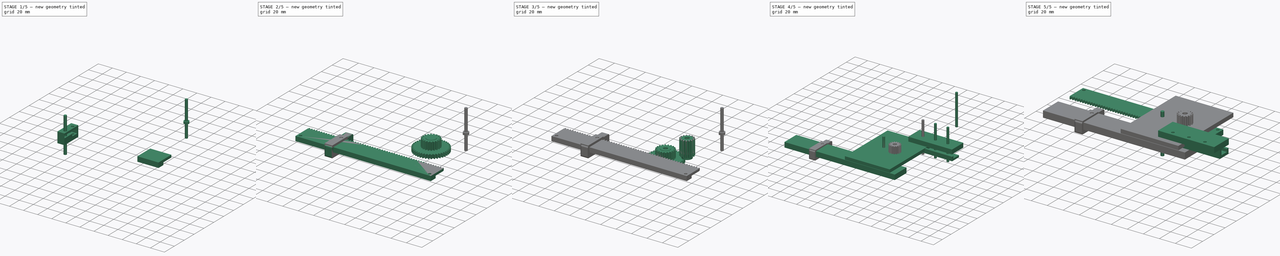
[diagram: build sequence overview — one tinted view per stage of 5, left to right]
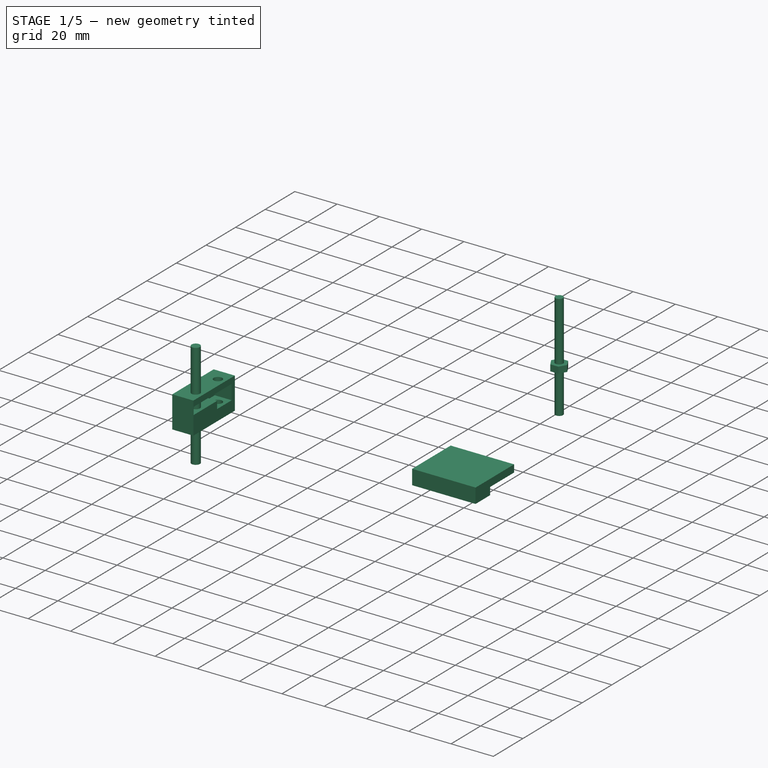
[diagram: stage 1 of 5 — iso view after this stage's code; geometry added in this stage tinted green]
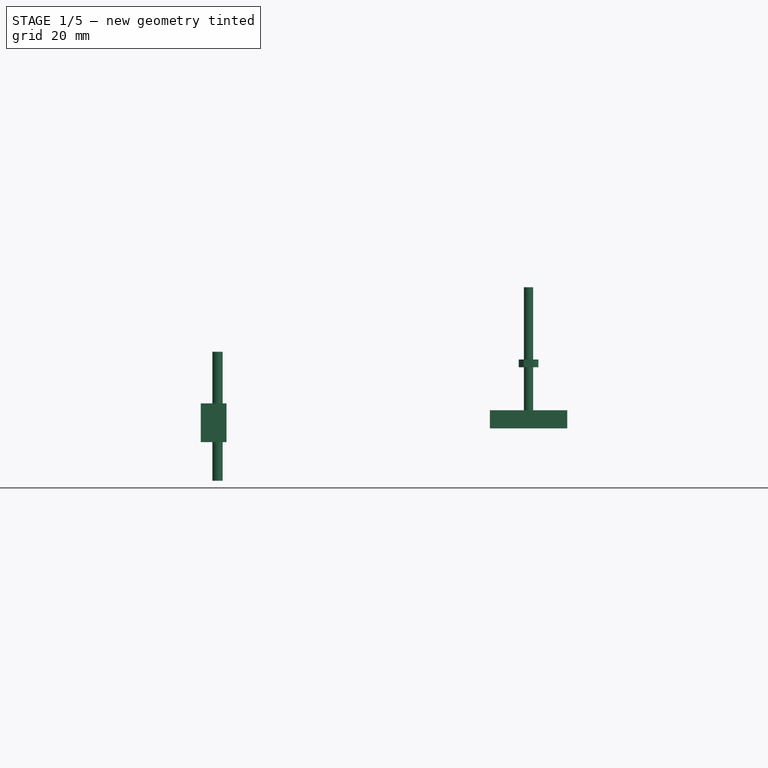
[diagram: stage 1 of 5 — front view after this stage's code; geometry added in this stage tinted green]
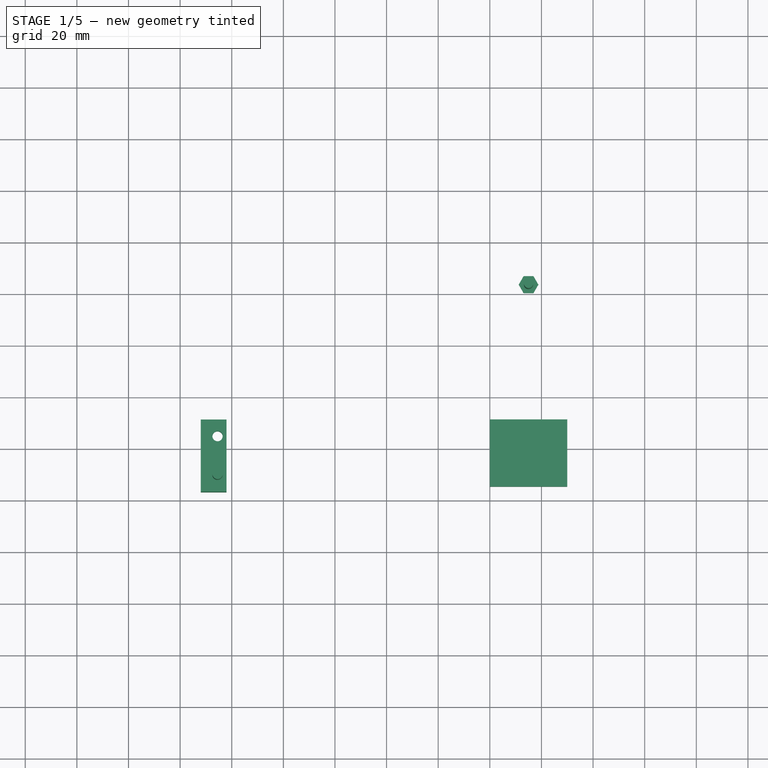
[diagram: stage 1 of 5 — top view after this stage's code; geometry added in this stage tinted green]
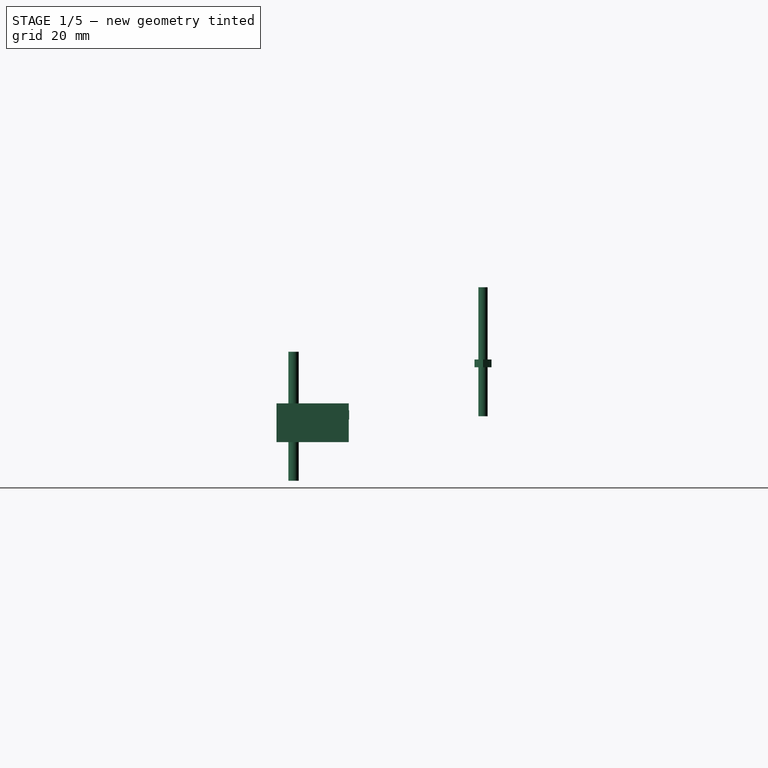
[diagram: stage 1 of 5 — right view after this stage's code; geometry added in this stage tinted green]
FCSTD DOCUMENT  (FreeCAD 0.18.4R)
Label: gears_v2
License: All rights reserved
LicenseURL: http://en.wikipedia.org/wiki/All_rights_reserved
objects: Part::Cylinder×10, Part::FeaturePython×10, Part::Box×8, Path::FeaturePython×8, Part::MultiFuse×7, Part::Cut×7, App::Part×7, Part::Feature×3, Sketcher::SketchObject×3, PartDesign::Pad×3, PartDesign::Body×3, App::FeaturePython×2, App::DocumentObjectGroup×2, Path::FeatureCompoundPython×2, Part::Mirroring×2, Spreadsheet::Sheet×1, Part::Fillet×1, Part::RegularPolygon×1, Part::Extrusion×1
note: 63 computed .brp shape members not serialized (recipe doc carries the construction recipe); baked Part::Feature solids carry a one-line shape summary decoded from their .brp

FEATURE [Part::Cylinder] Cylinder005  label="Cylinder"
  Angle = 360
  AttacherType = Attacher::AttachEngine3D
  Height = 50
  Placement = pos=(15,43,-12) rot=(0,0,1;0rad)
  Radius = 1.8
FEATURE [Part::Cylinder] Cylinder009
  Angle = 360
  AttacherType = Attacher::AttachEngine3D
  Height = 50
  Placement = pos=(-105.5,-30.4,-37) rot=(0,0,1;0rad)
  Radius = 2
FEATURE [Sketcher::SketchObject] Sketch001
  MapMode = 5
  Placement = pos=(0,0,0) rot=(0.57735,0.57735,0.57735;2.0944rad)
  Support = -> [YZ_Plane007]
  sketch-geometry (6):
    g0: LineSegment StartX=-34.9053 StartY=-9.68113 StartZ=0 EndX=-8.8898 EndY=-9.68113 EndZ=0
    g1: LineSegment StartX=-34.9053 StartY=-16.6811 StartZ=0 EndX=-34.9053 EndY=-9.68113 EndZ=0
    g2: LineSegment StartX=-34.9053 StartY=-16.6811 StartZ=0 EndX=-25.1079 EndY=-16.6811 EndZ=0
    g3: LineSegment StartX=-25.1079 StartY=-16.6811 StartZ=0 EndX=-25.1079 EndY=-13.1811 EndZ=0
    g4: LineSegment StartX=-25.1079 StartY=-13.1811 StartZ=0 EndX=-8.8898 EndY=-13.1811 EndZ=0
    g5: LineSegment StartX=-8.8898 StartY=-13.1811 StartZ=0 EndX=-8.8898 EndY=-9.68113 EndZ=0
  constraints (14):
    c: Coincident(g1,g0)
    c: Horizontal(g0)
    c: Vertical(g1)
    c: Coincident(g1,g2)
    c: Horizontal(g2)
    c: Coincident(g2,g3)
    c: Vertical(g3)
    c: Coincident(g3,g4)
    c: Horizontal(g4)
    c: Coincident(g4,g5)
    c: Coincident(g5,g0)
    c: Vertical(g5)
    c: DistanceY(g1,g1) = 7
    c: DistanceY(g5,g5) = 3.5
FEATURE [PartDesign::Pad] Pad001
  Length = 30
  Length2 = 100
  Placement = pos=(0,0,0) rot=(0.57735,0.57735,0.57735;2.0944rad)
  Profile = -> Sketch001
  Type = 0
FEATURE [App::Part] Part005  label="pusher shoe part"
  Group = -> [Box006,Cylinder008,Cut009,Cylinder009,Body001,Fusion001005,Fillet]
  Origin = -> Origin006
FEATURE [Part::Cylinder] Cylinder011
  Angle = 360
  AttacherType = Attacher::AttachEngine3D
  Height = 50
  Placement = pos=(-105.5,-15.4,-37) rot=(0,0,1;0rad)
  Radius = 2
FEATURE [Part::Box] Box007  label="Cube007"
  AttacherType = Attacher::AttachEngine3D
  Height = 15
  Length = 10
  Placement = pos=(-112,-37,-22) rot=(0,0,1;0rad)
  Width = 28
FEATURE [Sketcher::SketchObject] Sketch002
  MapMode = 5
  Placement = pos=(0,0,0) rot=(0.57735,0.57735,0.57735;2.0944rad)
  Support = -> [YZ_Plane009]
  sketch-geometry (6):
    g0: LineSegment StartX=-36.8054 StartY=-9.73482 StartZ=0 EndX=-11.1221 EndY=-9.73482 EndZ=0
    g1: LineSegment StartX=-36.8054 StartY=-13.2348 StartZ=0 EndX=-36.8054 EndY=-9.73482 EndZ=0
    g2: LineSegment StartX=-36.8054 StartY=-13.2348 StartZ=0 EndX=-20.9194 EndY=-13.2348 EndZ=0
    g3: LineSegment StartX=-20.9194 StartY=-13.2348 StartZ=0 EndX=-20.9194 EndY=-16.7348 EndZ=0
    g4: LineSegment StartX=-20.9194 StartY=-16.7348 StartZ=0 EndX=-11.1221 EndY=-16.7348 EndZ=0
    g5: LineSegment StartX=-11.1221 StartY=-16.7348 StartZ=0 EndX=-11.1221 EndY=-9.73482 EndZ=0
  constraints (14):
    c: Coincident(g1,g0)
    c: Horizontal(g0)
    c: Vertical(g1)
    c: Coincident(g1,g2)
    c: Horizontal(g2)
    c: Coincident(g2,g3)
    c: Vertical(g3)
    c: Coincident(g3,g4)
    c: Horizontal(g4)
    c: Coincident(g4,g5)
    c: Coincident(g5,g0)
    c: Vertical(g5)
    c: DistanceY(g5,g5) = 7
    c: DistanceY(g1,g1) = 3.5
FEATURE [PartDesign::Pad] Pad002
  Length = 30
  Length2 = 100
  Placement = pos=(0,0,0) rot=(0.57735,0.57735,0.57735;2.0944rad)
  Profile = -> Sketch002
  Type = 0
FEATURE [PartDesign::Body] Body002
  Group = -> [Sketch002,Pad002]
  Origin = -> Origin009
  Placement = pos=(-110,0,0) rot=(0,0,1;0rad)
  Tip = -> Pad002
FEATURE [Part::MultiFuse] Fusion001006
  Shapes = -> [Body002,Cylinder011]
FEATURE [Part::Cut] Cut010
  Base = -> Box007
  Tool = -> Fusion001006
FEATURE [App::Part] Part006  label="pusher other shoe part"
  Group = -> [Box007,Cut010,Cylinder011,Body002,Fusion001006]
  Origin = -> Origin008
  Placement = pos=(0,46,0) rot=(0,0,1;0rad)
FEATURE [Part::RegularPolygon] RegularPolygon  label="Regular polygon"
  AttacherType = Attacher::AttachEngine3D
  Circumradius = 3.8
  Polygon = 6
FEATURE [Part::Extrusion] Extrude001  label="Extrude"
  Base = -> RegularPolygon
  Dir = (0,0,1)
  DirMode = 2
  FaceMakerClass = Part::FaceMakerBullseye
  LengthFwd = 3
  LengthRev = 0
  Placement = pos=(15,43,7) rot=(0,0,1;0rad)
  Solid = true
  Symmetric = false
FEATURE [Part::MultiFuse] Fusion001007
  Shapes = -> [Cylinder005,Extrude001]
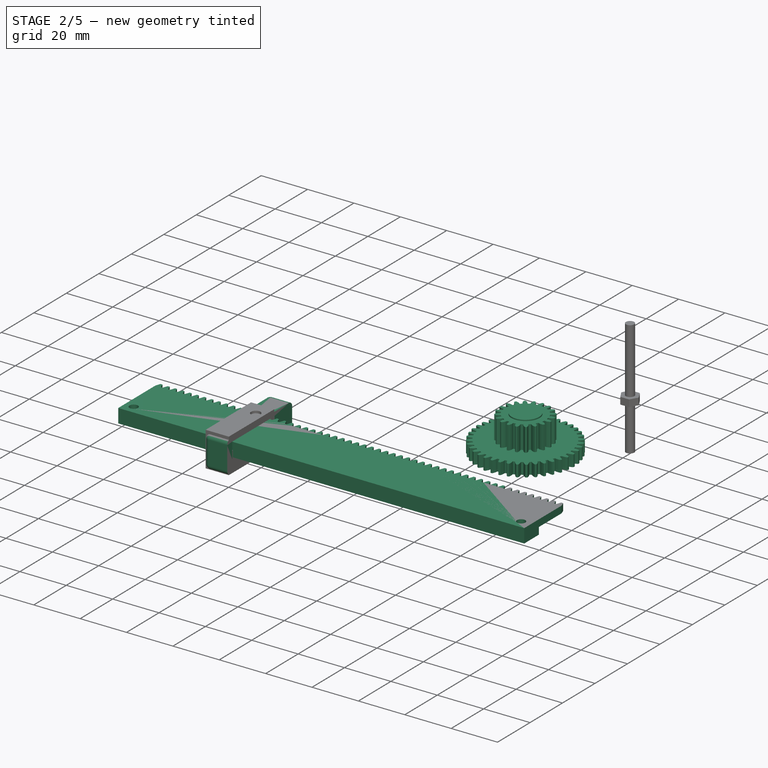
[diagram: stage 2 of 5 — iso view after this stage's code; geometry added in this stage tinted green]
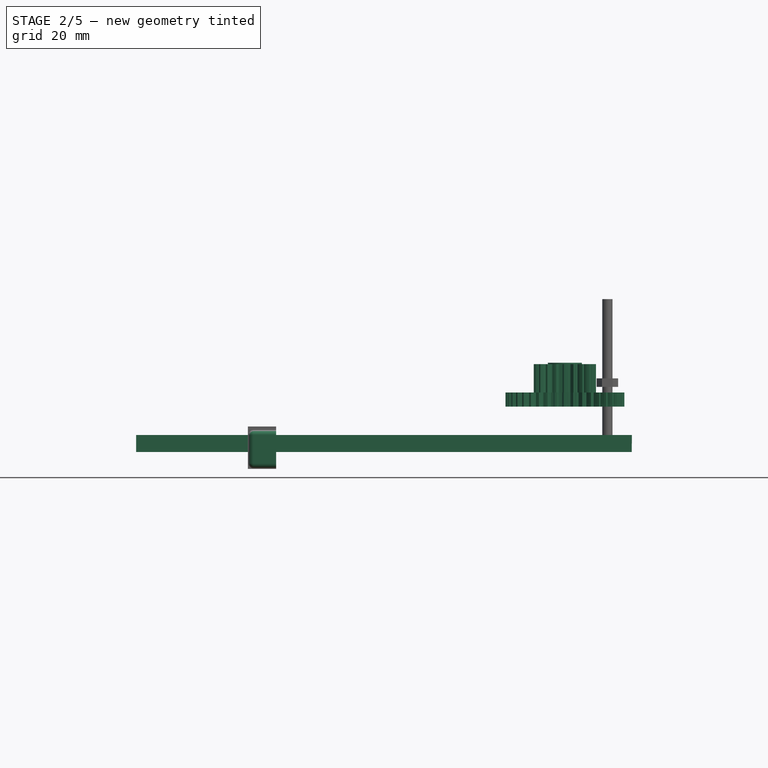
[diagram: stage 2 of 5 — front view after this stage's code; geometry added in this stage tinted green]
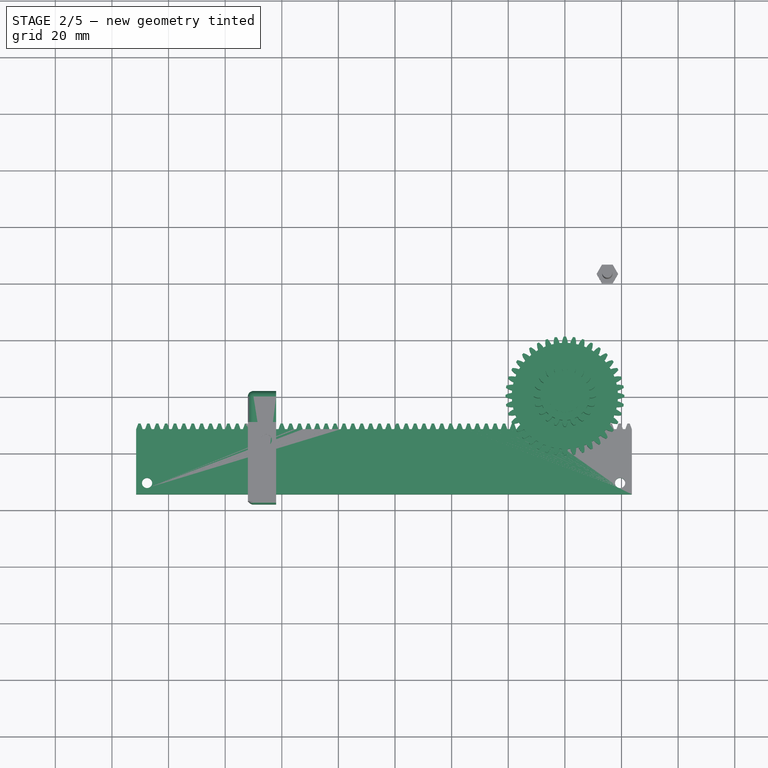
[diagram: stage 2 of 5 — top view after this stage's code; geometry added in this stage tinted green]
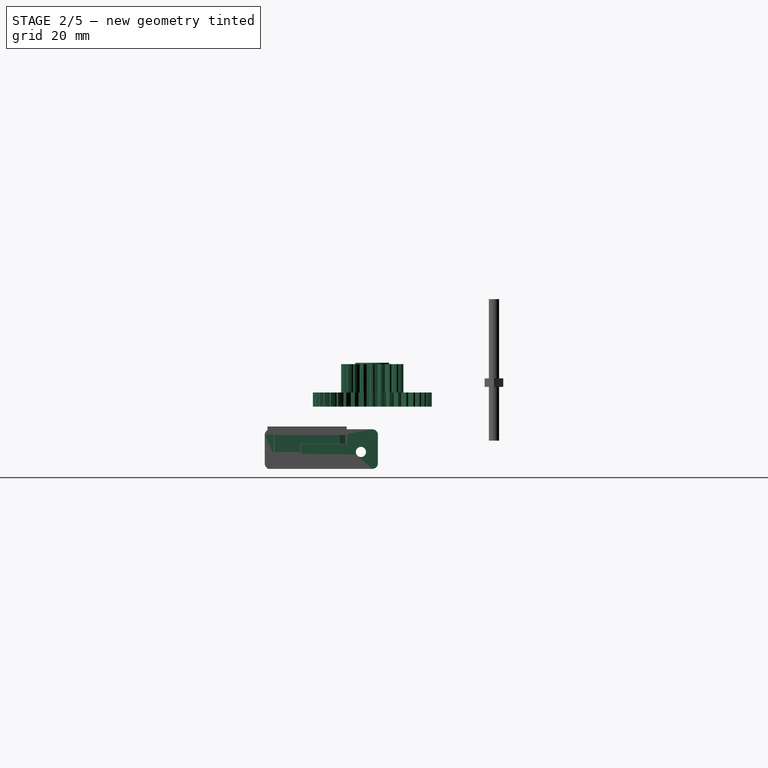
[diagram: stage 2 of 5 — right view after this stage's code; geometry added in this stage tinted green]
FEATURE [Part::FeaturePython] InvoluteGear001  label="Involute smaller Gear"  # WARN: FeaturePython — macro-defined, semantics opaque (R4)
  Placement = pos=(0,0,5) rot=(0,0,1;0rad)
  backlash = 0
  beta = 0
  clearance = 0.25
  double_helix = false
  dw = 20
  head = 0
  height = 10
  module = 1
  numpoints = 6
  pressure_angle = 20
  reversed_backlash = false
  shift = 0
  simple = false
  teeth = 20
  undercut = false
FEATURE [Part::FeaturePython] InvoluteGear002  label="Involute bigger Gear"  # WARN: FeaturePython — macro-defined, semantics opaque (R4)
  backlash = 0
  beta = 0
  clearance = 0.25
  double_helix = false
  dw = 40
  head = 0
  height = 5
  module = 1
  numpoints = 6
  pressure_angle = 20
  reversed_backlash = false
  shift = 0
  simple = false
  teeth = 40
  undercut = false
FEATURE [Part::Cylinder] Cylinder002  label="Vtulka"
  Angle = 360
  AttacherType = Attacher::AttachEngine3D
  Height = 15
  Placement = pos=(0,0,0.5) rot=(0,0,1;0rad)
  Radius = 6
FEATURE [Part::MultiFuse] Fusion001002
  Shapes = -> [InvoluteGear001,InvoluteGear002,Cylinder002]
FEATURE [App::Part] Part001  label="gear line part"
  Group = -> [Cylinder003,Cut006,InvoluteRack,Box,Fusion,Part__Mirroring,Array001]
  Origin = -> Origin002
  Placement = pos=(42,0,0) rot=(0,0,1;0rad)
FEATURE [Part::Feature] Cut006_solid001  label="gears line001 (Solid)"
  shape: bbox 175.1 x 25 x 6 mm, 236 faces (baked)
FEATURE [Part::FeaturePython] Clone001  label="Model-gears line001 (Solid)001"  # Draft clone (typed FeaturePython)
  AttacherType = Attacher::AttachEngine3D
  Fuse = false
  Objects = -> [Cut006_solid001]
  PathResource = Model
  Scale = (1,1,1)
FEATURE [App::Part] Part003  label="stepper gear part"
  Group = -> [InvoluteGear,Fusion001001,Cylinder006,Fusion001003,Cut007,Cylinder007,Box005,Cut008]
  Origin = -> Origin004
  Placement = pos=(0,0,-16) rot=(0,0,1;0rad)
FEATURE [App::Part] Part004  label="gear pair part"
  Group = -> [Fusion001002,InvoluteGear002,InvoluteGear001,Cylinder001,Cylinder002,Cut005]
  Origin = -> Origin005
FEATURE [Path::FeaturePython] Engrave003  # Path/CAM operation (typed FeaturePython)
  Active = true
  Base = -> [Clone001]
  ClearanceHeight = -9
  FinalDepth = 0
  OpFinalDepth = -10.2
  OpStartDepth = -10
  OpStockZMax = -9
  OpStockZMin = -17
  OpToolDiameter = 0.2
  SafeHeight = -9
  StartDepth = 0
  StartVertex = 0
  StepDown = 0.2
  ToolController = -> T3__laser001
  expr: ClearanceHeight = OpStockZMax + SetupSheet001.ClearanceHeightOffset
  expr: SafeHeight = OpStockZMax + SetupSheet001.SafeHeightOffset
  expr: StepDown = OpToolDiameter
FEATURE [Path::FeatureCompoundPython] Operations001  # Path/CAM operation (typed FeaturePython)
  Group = -> [Engrave002,Contour,Engrave003]
  UsePlacements = false
FEATURE [Path::FeaturePython] Job001  label="gear line job"  # Path/CAM operation (typed FeaturePython)
  GeometryTolerance = 0.01
  Model = -> Model001
  Operations = -> Operations001
  PostProcessor = 1
  PostProcessorOutputFile = <userpath>/work/roborep/freecad/stepper_gears/gear_line_wide.gcode
  SetupSheet = -> SetupSheet001
  Stock = -> Stock003
  ToolController = -> [T3__laser001]
FEATURE [Part::Box] Box006  label="Cube006"
  AttacherType = Attacher::AttachEngine3D
  Height = 14
  Length = 10
  Placement = pos=(-112,-38,-22) rot=(0,0,1;0rad)
  Width = 40
FEATURE [Part::Cylinder] Cylinder008
  Angle = 360
  AttacherType = Attacher::AttachEngine3D
  Height = 50
  Placement = pos=(-143,-4,-16) rot=(0,1,0;1.5708rad)
  Radius = 1.8
FEATURE [PartDesign::Body] Body001
  Group = -> [Sketch001,Pad001]
  Origin = -> Origin007
  Placement = pos=(-110,0,0) rot=(0,0,1;0rad)
  Tip = -> Pad001
FEATURE [Part::MultiFuse] Fusion001005
  Shapes = -> [Cylinder008,Cylinder009,Body001]
FEATURE [Part::Cut] Cut009
  Base = -> Box006
  Tool = -> Fusion001005
FEATURE [Part::Fillet] Fillet
  Base = -> Cut009
  Edges = 8 edges r=2: [Edge1,Edge2,Edge3,Edge4,Edge6,Edge8,Edge9,Edge12]
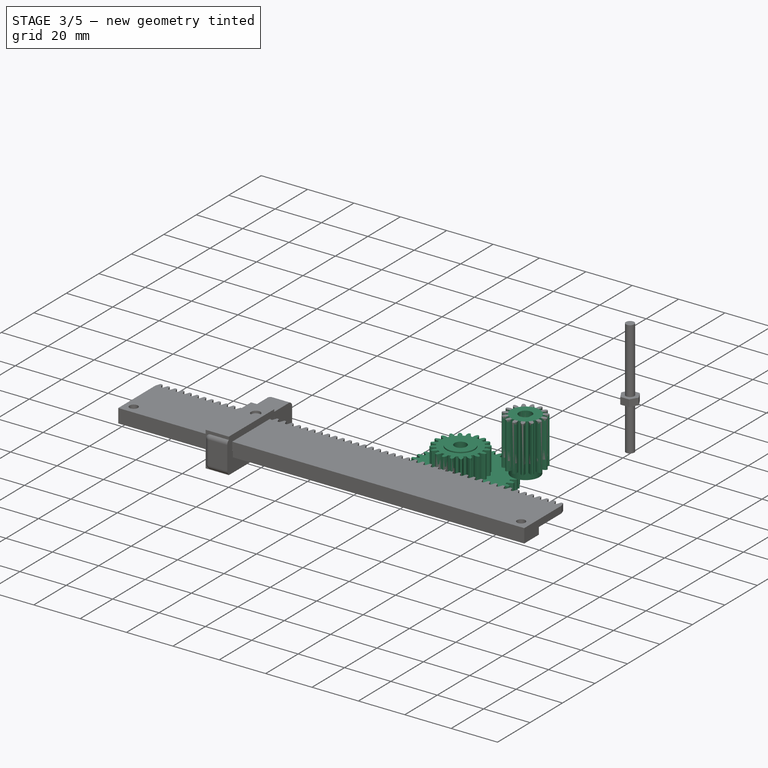
[diagram: stage 3 of 5 — iso view after this stage's code; geometry added in this stage tinted green]
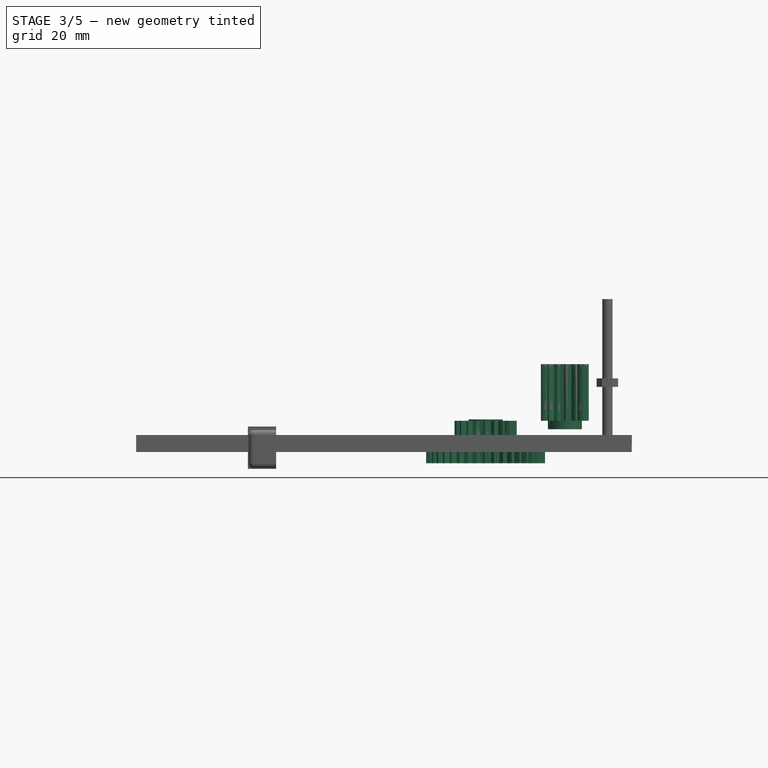
[diagram: stage 3 of 5 — front view after this stage's code; geometry added in this stage tinted green]
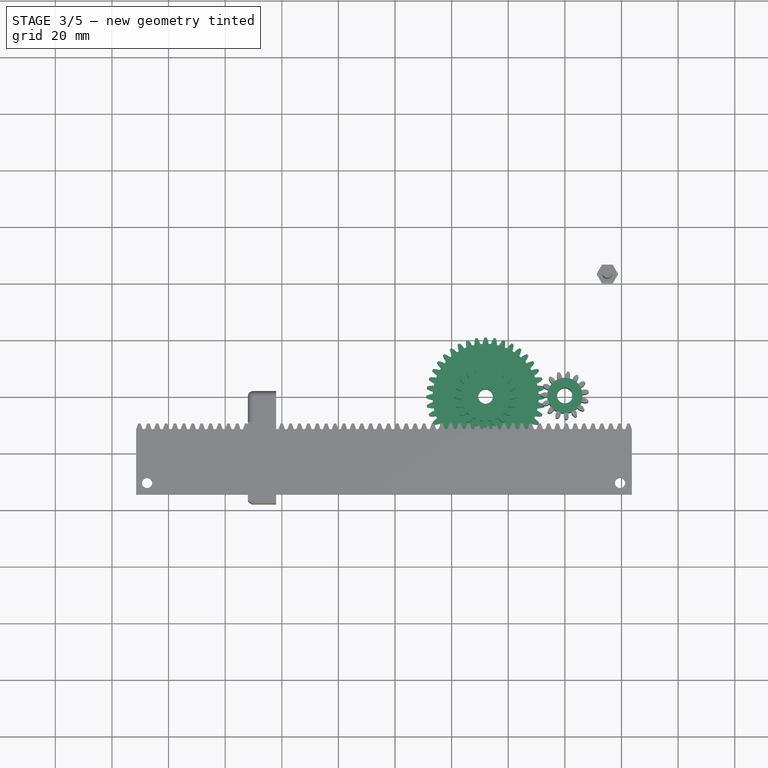
[diagram: stage 3 of 5 — top view after this stage's code; geometry added in this stage tinted green]
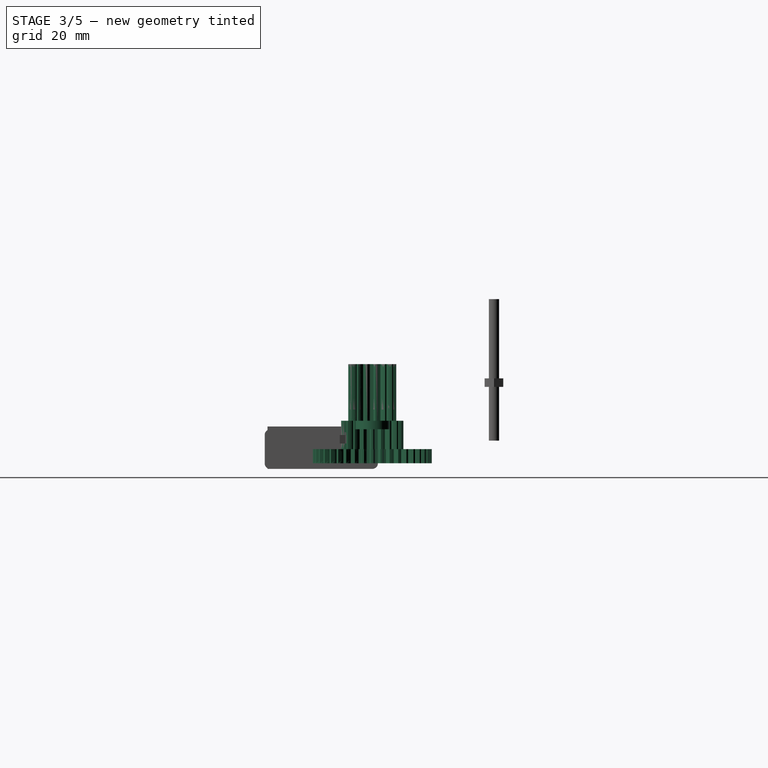
[diagram: stage 3 of 5 — right view after this stage's code; geometry added in this stage tinted green]
FEATURE [Part::Cylinder] Cylinder001
  Angle = 360
  AttacherType = Attacher::AttachEngine3D
  Height = 30
  Placement = pos=(0,0,-10.5) rot=(0,0,1;0rad)
  Radius = 2.6
FEATURE [Part::Cut] Cut005  label="gears pair"
  Base = -> Fusion001002
  Placement = pos=(-28,0,-20) rot=(0,-1,0;0rad)
  Tool = -> Cylinder001
FEATURE [Part::Cylinder] Cylinder006
  Angle = 360
  AttacherType = Attacher::AttachEngine3D
  Height = 13
  Placement = pos=(0,0,-8) rot=(0,0,1;0rad)
  Radius = 6
FEATURE [Part::FeaturePython] InvoluteGear  # WARN: FeaturePython — macro-defined, semantics opaque (R4)
  Placement = pos=(0,0,-5) rot=(0,0,1;0rad)
  backlash = 0
  beta = 0
  clearance = 0.25
  double_helix = false
  dw = 15
  head = 0
  height = 20
  module = 1
  numpoints = 6
  pressure_angle = 20
  reversed_backlash = false
  shift = 0
  simple = false
  teeth = 15
  undercut = false
FEATURE [Part::MultiFuse] Fusion001003  label="shaft gear block"
  Shapes = -> [InvoluteGear,Cylinder006]
FEATURE [Part::Feature] Fusion001001  label="Motor-with-connector-final"
  Placement = pos=(0,0,-53) rot=(0,0,1;0rad)
  shape: bbox 48 x 42.3 x 60.1 mm, 110 faces (baked)
FEATURE [Part::Cylinder] Cylinder007
  Angle = 360
  AttacherType = Attacher::AttachEngine3D
  Height = 50
  Radius = 2.8
FEATURE [Part::Box] Box005  label="Cube005"
  AttacherType = Attacher::AttachEngine3D
  Height = 50
  Length = 10
  Placement = pos=(-12.5,-5,0) rot=(0,0,1;0rad)
  Width = 10
FEATURE [Part::Cut] Cut008  label="motor shaft"
  Base = -> Cylinder007
  Placement = pos=(0,0,-10) rot=(0,0,1;0rad)
  Tool = -> Box005
FEATURE [Part::Cut] Cut007  label="stepper_gear_cut"
  Base = -> Fusion001003
  Placement = pos=(0,0,0) rot=(0,0,1;3.10669rad)
  Tool = -> Cut008
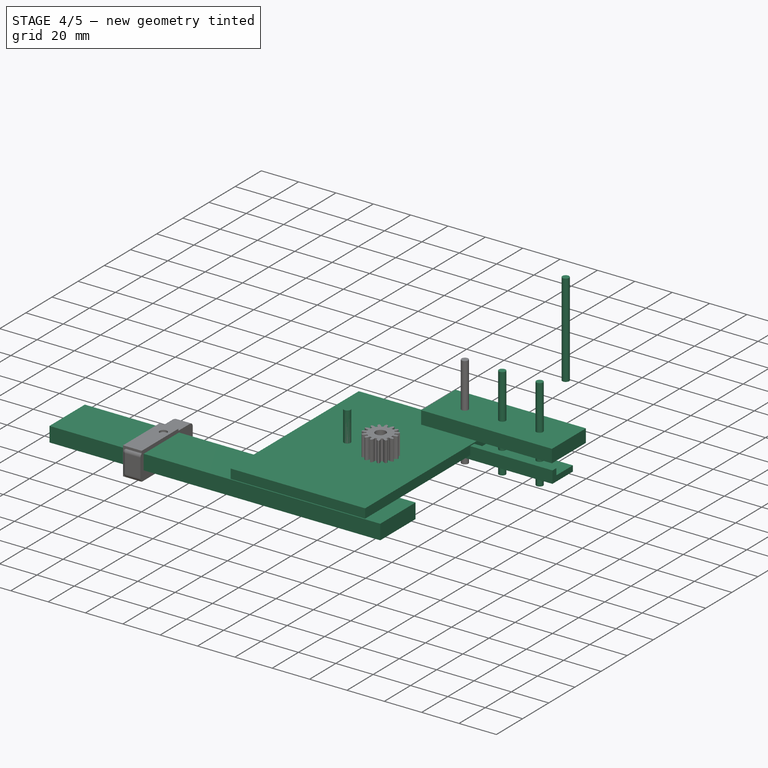
[diagram: stage 4 of 5 — iso view after this stage's code; geometry added in this stage tinted green]
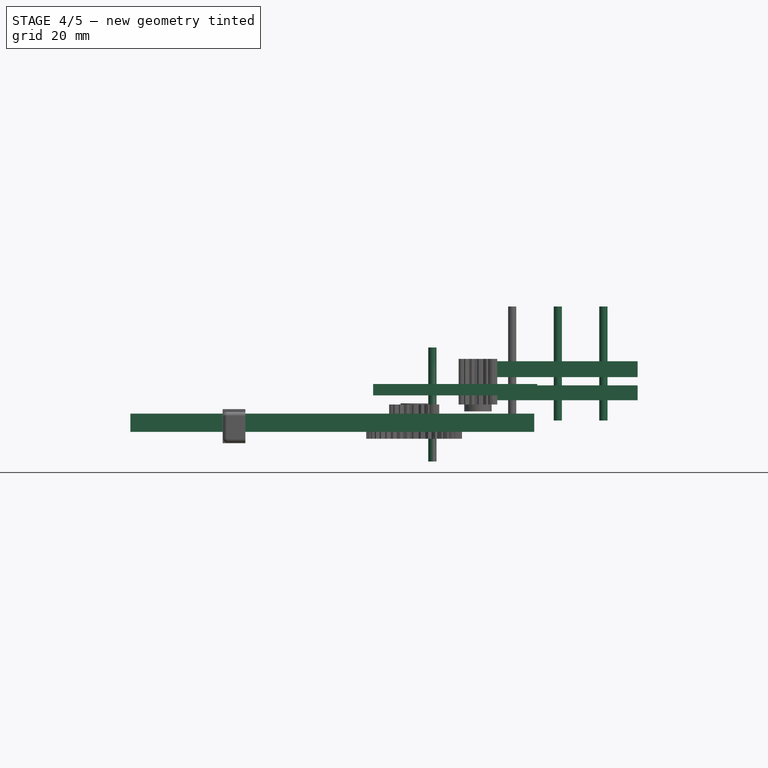
[diagram: stage 4 of 5 — front view after this stage's code; geometry added in this stage tinted green]
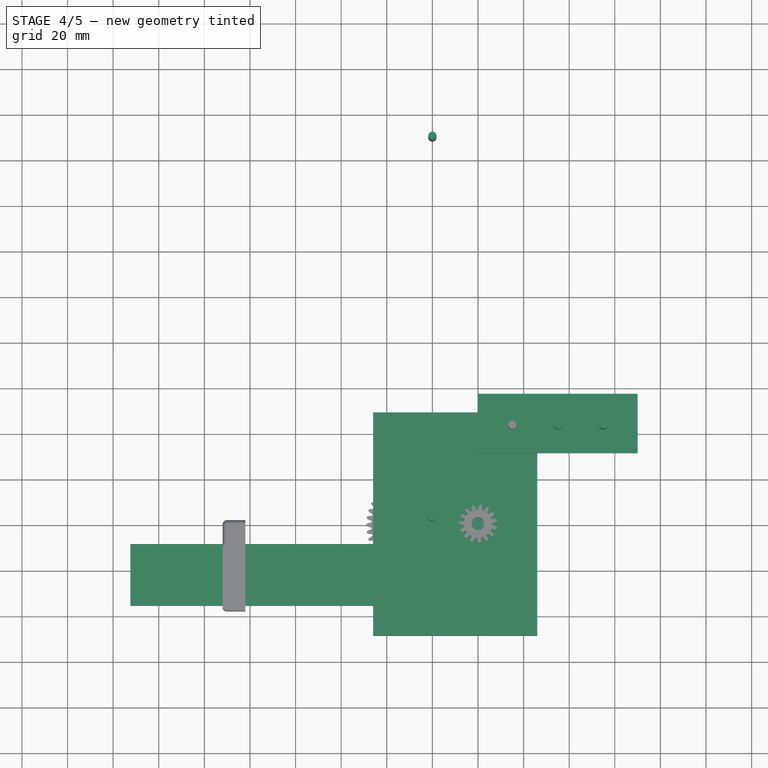
[diagram: stage 4 of 5 — top view after this stage's code; geometry added in this stage tinted green]
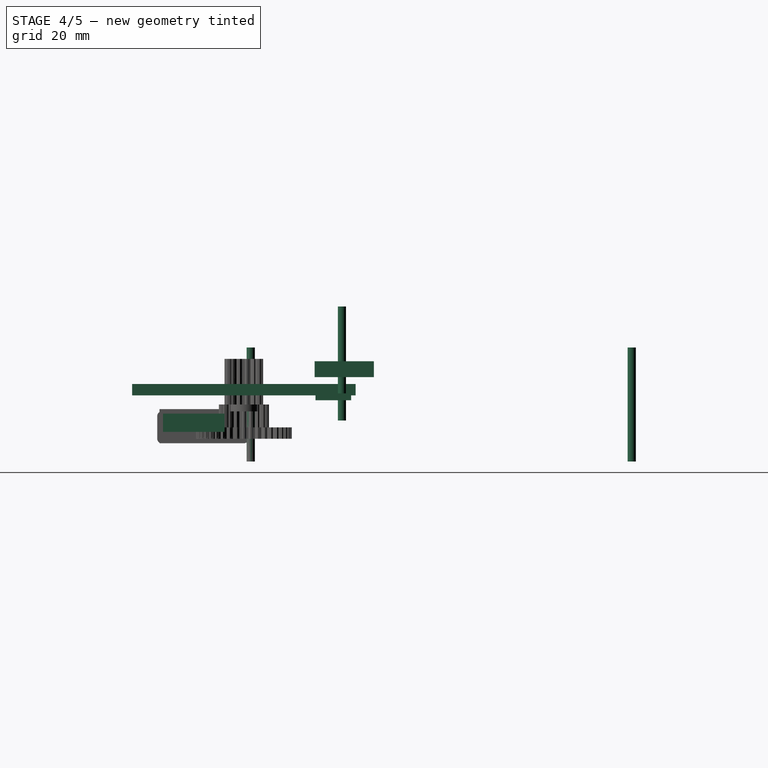
[diagram: stage 4 of 5 — right view after this stage's code; geometry added in this stage tinted green]
FEATURE [Part::Cylinder] Cylinder003
  Angle = 360
  AttacherType = Attacher::AttachEngine3D
  Height = 50
  Placement = pos=(-20,3,-30) rot=(0,0,1;0rad)
  Radius = 1.8
FEATURE [Spreadsheet::Sheet] Spreadsheet  label="p"
  cells = A1=teeth_line_length; B1(teeth_line_length)=175.08; A2=motor_plate_length; B2(motor_plate_length)=70; A3=motor_plate_width; B3(motor_plate_width)=96
FEATURE [Part::Box] Box002  label="Cube002"
  AttacherType = Attacher::AttachEngine3D
  Height = 7
  Length = 70
  Placement = pos=(0,31,7) rot=(0,0,1;0rad)
  Width = 26
  expr: Length = p.motor_plate_length
FEATURE [Part::Box] Box003  label="Cube003"
  AttacherType = Attacher::AttachEngine3D
  Height = 3
  Length = 70
  Placement = pos=(0,31.4,-3.1) rot=(0,0,1;0rad)
  Width = 15.6
  expr: Length = p.motor_plate_length
FEATURE [Part::Box] Box004  label="Cube004"
  AttacherType = Attacher::AttachEngine3D
  Height = 6
  Length = 70
  Placement = pos=(0,31.4,-2.6) rot=(0,0,1;0rad)
  Width = 3
  expr: Length = p.motor_plate_length
FEATURE [PartDesign::Pad] Pad
  Length = 3
  Length2 = 100
  Profile = -> Sketch
  Type = 0
FEATURE [PartDesign::Body] Body
  Group = -> [Sketch,Pad]
  Origin = -> Origin001
  Tip = -> Pad
FEATURE [App::Part] Part  label="motor plate"
  Group = -> [Body]
  Origin = -> Origin
FEATURE [App::FeaturePython] SetupSheet  # Path/CAM operation (typed FeaturePython)
  ClearanceHeightExpression = OpStockZMax+SetupSheet.ClearanceHeightOffset
  ClearanceHeightOffset = 0
  FinalDepthExpression = OpFinalDepth
  HorizRapid = 100
  SafeHeightExpression = OpStockZMax+SetupSheet.SafeHeightOffset
  SafeHeightOffset = 0
  StartDepthExpression = OpStartDepth
  StepDownExpression = OpToolDiameter
  VertRapid = 100
FEATURE [Part::FeaturePython] Clone  label="Model-motor plate"  # Draft clone (typed FeaturePython)
  AttacherType = Attacher::AttachEngine3D
  Fuse = false
  Objects = -> [Part]
  PathResource = Model
  Scale = (1,1,1)
FEATURE [App::DocumentObjectGroup] Model
  Group = -> [Clone]
FEATURE [Part::FeaturePython] Stock  # WARN: FeaturePython — macro-defined, semantics opaque (R4)
  Base = -> Model
  ExtXneg = 1
  ExtXpos = 1
  ExtYneg = 1
  ExtYpos = 1
  ExtZneg = 1
  ExtZpos = 1
  Placement = pos=(-45,-48,0) rot=(0,0,1;0rad)
  StockType = FromBase
FEATURE [Path::FeaturePython] T3__laser  label="T3: laser"  # Path/CAM operation (typed FeaturePython)
  HorizFeed = 0.5
  HorizRapid = 100
  SpindleDir = 0
  SpindleSpeed = 1000
  ToolNumber = 3
  VertFeed = 0.5
  VertRapid = 100
  expr: HorizRapid = SetupSheet.HorizRapid
  expr: VertRapid = SetupSheet.VertRapid
FEATURE [Path::FeaturePython] Engrave  # Path/CAM operation (typed FeaturePython)
  Active = true
  Base = -> [Clone]
  ClearanceHeight = 0
  FinalDepth = 0
  OpFinalDepth = 2.8
  OpStartDepth = 3
  OpStockZMax = 4
  OpStockZMin = -1
  OpToolDiameter = 0.2
  SafeHeight = 0
  StartDepth = 0
  StartVertex = 0
  StepDown = 0.2
  ToolController = -> T3__laser
  expr: StepDown = OpToolDiameter
FEATURE [Path::FeatureCompoundPython] Operations  # Path/CAM operation (typed FeaturePython)
  Group = -> [Engrave]
  UsePlacements = false
FEATURE [Path::FeaturePython] Job  label="motor plate job"  # Path/CAM operation (typed FeaturePython)
  GeometryTolerance = 0.01
  Model = -> Model
  Operations = -> Operations
  PostProcessor = 1
  PostProcessorOutputFile = <userpath>/work/roborep/freecad/stepper_gears/motor_plate.gcode
  SetupSheet = -> SetupSheet
  Stock = -> Stock
  ToolController = -> [T3__laser]
FEATURE [App::FeaturePython] SetupSheet001  # Path/CAM operation (typed FeaturePython)
  ClearanceHeightExpression = OpStockZMax+SetupSheet001.ClearanceHeightOffset
  ClearanceHeightOffset = 0
  FinalDepthExpression = OpFinalDepth
  HorizRapid = 100
  SafeHeightExpression = OpStockZMax+SetupSheet001.SafeHeightOffset
  SafeHeightOffset = 0
  StartDepthExpression = OpStartDepth
  StepDownExpression = OpToolDiameter
  VertRapid = 100
FEATURE [Path::FeaturePython] T3__laser001  label="T3: laser001"  # Path/CAM operation (typed FeaturePython)
  HorizFeed = 0.5
  HorizRapid = 100
  SpindleDir = 0
  SpindleSpeed = 1000
  ToolNumber = 3
  VertFeed = 0.5
  VertRapid = 100
  expr: HorizRapid = SetupSheet001.HorizRapid
  expr: VertRapid = SetupSheet001.VertRapid
FEATURE [Path::FeaturePython] Contour  # Path/CAM operation (typed FeaturePython)
  Active = false
  AreaParams:
    Tolerance = 1e-07
    FitArcs = True
    Simplify = False
    CleanDistance = 0.0
    Accuracy = 0.01
    Unit = 1.0
    MinArcPoints = 4
    MaxArcPoints = 100
    ClipperScale = 10000000.0
    Fill = 0
    Coplanar = 2
    Reorient = True
    Outline = False
    Explode = False
    OpenMode = 0
    Deflection = 0.01
    SubjectFill = 0
    ClipFill = 0
    Offset = 0.1
    ExtraPass = 0
    Stepover = 0.0
    LastStepover = 0.0
    JoinType = 0
    EndType = 0
    MiterLimit = 2.0
    RoundPrecision = 0.0
    PocketMode = 0
    ToolRadius = 1.0
    PocketExtraOffset = 0.0
    PocketStepover = 0.0
    PocketLastStepover = 0.0
    FromCenter = False
    Angle = 45.0
    AngleShift = 0.0
    Shift = 0.0
    Thicken = False
    SectionCount = -1
    Stepdown = 1.0
    SectionOffset = 0.0
    SectionTolerance = 1e-06
    SectionMode = 2
    Project = False
  ClearanceHeight = 0
  Direction = 1
  FinalDepth = -0.1
  JoinType = 0
  MiterLimit = 0.1
  OffsetExtra = 0
  OpFinalDepth = -17
  OpStartDepth = -9
  OpStockZMax = -9
  OpStockZMin = -17
  OpToolDiameter = 0.2
  PathParams = {'orientation': 0, 'feedrate': 0.5, 'feedrate_v': 0.5, 'verbose': True, 'resume_height': 0.0, 'retraction': 0.0, 'return_end': True, 'preamble': False}
  SafeHeight = 0
  Side = 0
  StartDepth = 0
  StartPoint = (0,0,0)
  StepDown = 0.2
  ToolController = -> T3__laser001
  UseComp = true
  UseStartPoint = false
  expr: StepDown = OpToolDiameter
FEATURE [Part::FeaturePython] Array001  # Draft array (typed FeaturePython)
  Angle = 360
  ArrayType = 0
  Axis = (0,0,1)
  Base = -> Cylinder003
  Center = (0,0,0)
  Fuse = false
  IntervalAxis = (0,0,0)
  IntervalX = (1,0,0)
  IntervalY = (0,167.08,0)
  IntervalZ = (0,0,1)
  NumberPolar = 1
  NumberX = 1
  NumberY = 2
  NumberZ = 1
  expr: IntervalY.y = p.teeth_line_length - 8
FEATURE [App::DocumentObjectGroup] Model001
  Group = -> [Clone001]
FEATURE [Path::FeaturePython] Engrave002  # Path/CAM operation (typed FeaturePython)
  Active = true
  Base = -> [Clone001]
  ClearanceHeight = 0
  FinalDepth = 0
  OpFinalDepth = -10.2
  OpStartDepth = -10
  OpStockZMax = -9
  OpStockZMin = -17
  OpToolDiameter = 0.2
  SafeHeight = 0
  StartDepth = 0
  StartVertex = 0
  StepDown = 0.2
  ToolController = -> T3__laser001
  expr: StepDown = OpToolDiameter
FEATURE [Part::FeaturePython] Stock003  # WARN: FeaturePython — macro-defined, semantics opaque (R4)
  Base = -> Model001
  ExtXneg = 1
  ExtXpos = 1
  ExtYneg = 1
  ExtYpos = 1
  ExtZneg = 1
  ExtZpos = 1
  Placement = pos=(-151.44,-34.5,-16) rot=(0,0,1;0rad)
  StockType = FromBase
FEATURE [Part::FeaturePython] Array  # Draft array (typed FeaturePython)
  Angle = 360
  ArrayType = 0
  Axis = (0,0,1)
  Base = -> Fusion001007
  Center = (0,0,0)
  Fuse = false
  IntervalAxis = (0,0,0)
  IntervalX = (20,0,0)
  IntervalY = (0,0,0)
  IntervalZ = (0,0,1)
  NumberPolar = 1
  NumberX = 3
  NumberY = 1
  NumberZ = 1
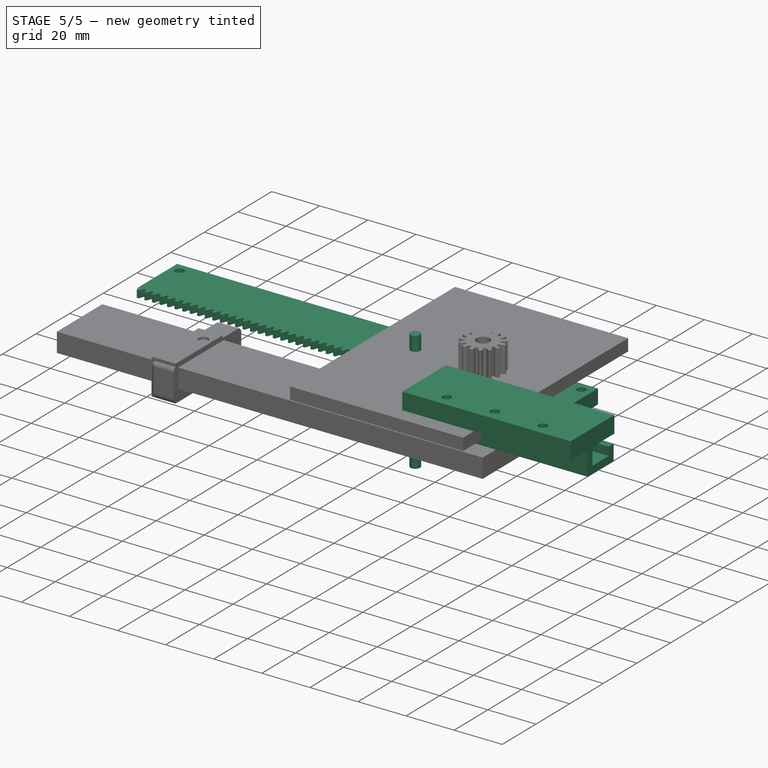
[diagram: stage 5 of 5 — iso view after this stage's code; geometry added in this stage tinted green]
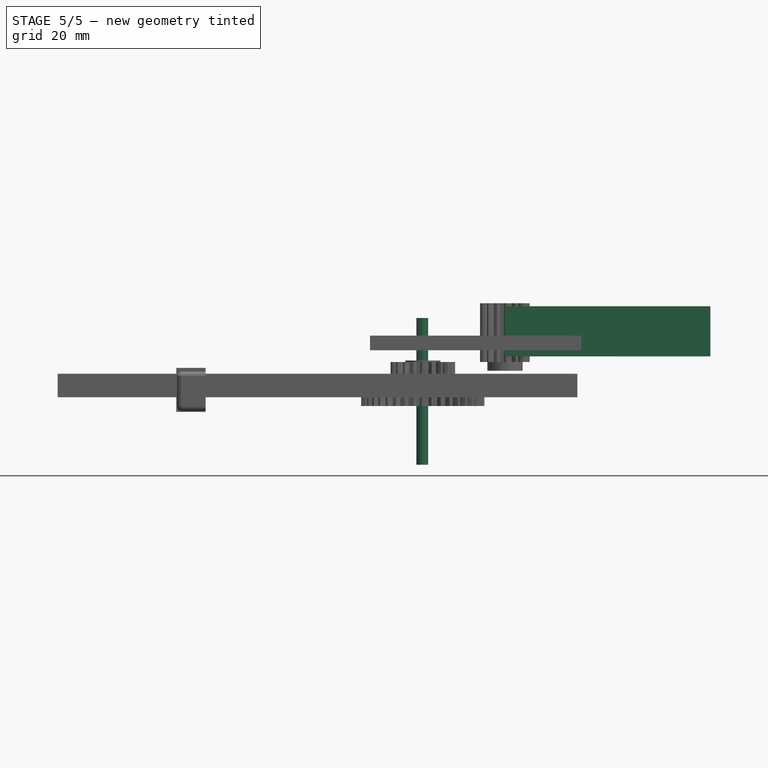
[diagram: stage 5 of 5 — front view after this stage's code; geometry added in this stage tinted green]
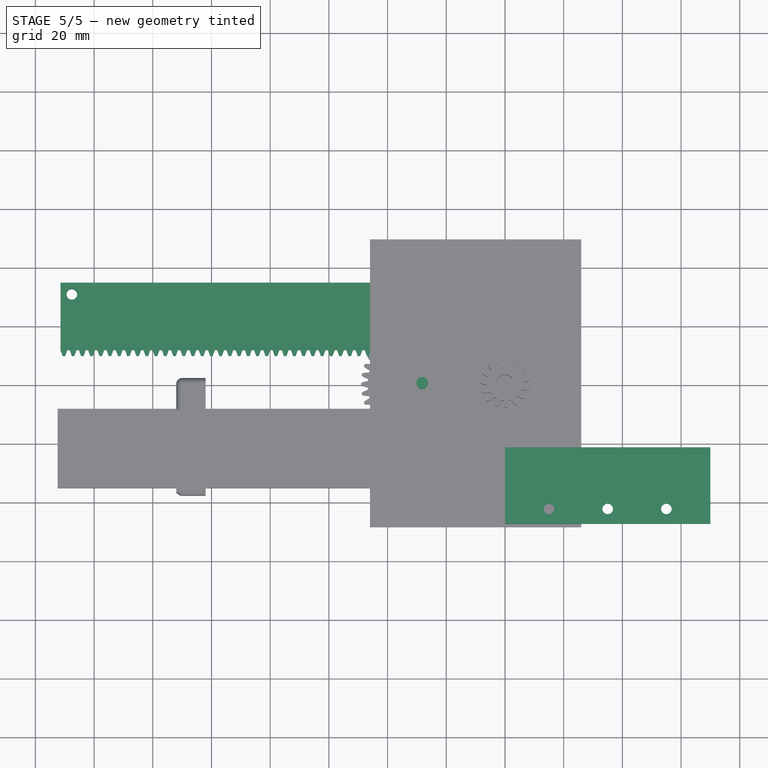
[diagram: stage 5 of 5 — top view after this stage's code; geometry added in this stage tinted green]
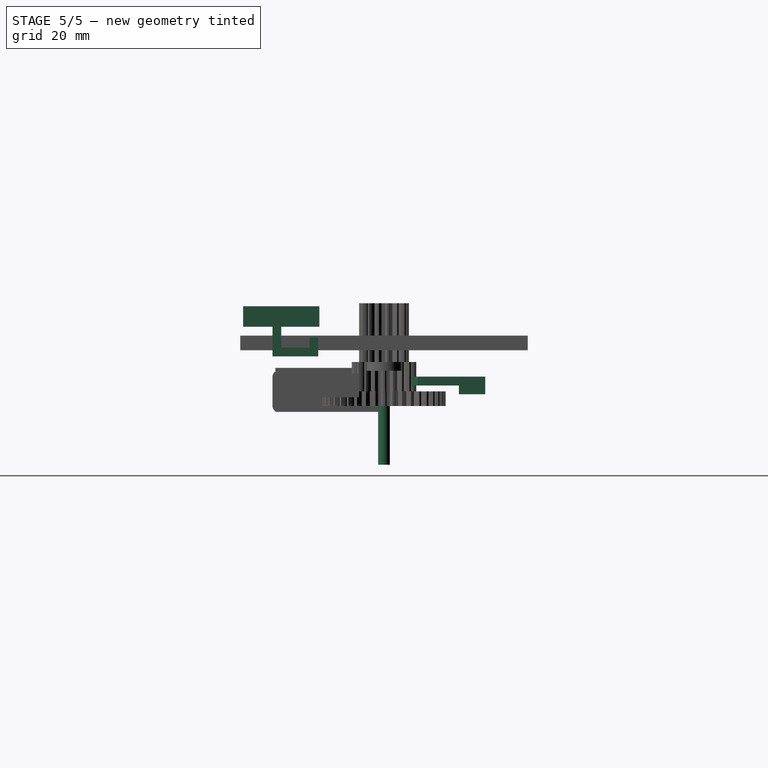
[diagram: stage 5 of 5 — right view after this stage's code; geometry added in this stage tinted green]
FEATURE [Part::Feature] Pocket003Body001  label="StepperBody"
  Placement = pos=(0,0,4) rot=(0,0,1;0rad)
  shape: bbox 46.6 x 42.3 x 53.35 mm, 70 faces (baked)
FEATURE [Sketcher::SketchObject] Sketch
  MapMode = 5
  Support = -> [XY_Plane001]
  expr: Constraints[14] = p.motor_plate_width
  expr: Constraints[13] = p.motor_plate_length
  sketch-geometry (39):
    g0: LineSegment StartX=-45 StartY=48 StartZ=0 EndX=25 EndY=48 EndZ=0
    g1: LineSegment StartX=25 StartY=48 StartZ=0 EndX=25 EndY=-48 EndZ=0
    g2: LineSegment StartX=25 StartY=-48 StartZ=0 EndX=-45 EndY=-48 EndZ=0
    g3: LineSegment StartX=-45 StartY=-48 StartZ=0 EndX=-45 EndY=48 EndZ=0
    g4: Circle CenterX=-15.5 CenterY=-15.5 CenterZ=0 NormalX=0 NormalY=0 NormalZ=1 AngleXU=0 Radius=1.8
    g5: Circle CenterX=15.5 CenterY=-15.5 CenterZ=0 NormalX=0 NormalY=0 NormalZ=1 AngleXU=0 Radius=1.8
    g6: Circle CenterX=15.5 CenterY=15.5 CenterZ=0 NormalX=0 NormalY=0 NormalZ=1 AngleXU=0 Radius=1.8
    g7: Circle CenterX=-15.5 CenterY=15.5 CenterZ=0 NormalX=0 NormalY=0 NormalZ=1 AngleXU=0 Radius=1.8
    g8: ArcOfCircle CenterX=-10 CenterY=45 CenterZ=0 NormalX=0 NormalY=0 NormalZ=1 AngleXU=0 Radius=1.9 StartAngle=-1.8e-15 EndAngle=3.14159
    g9: ArcOfCircle CenterX=-10 CenterY=41 CenterZ=0 NormalX=0 NormalY=0 NormalZ=1 AngleXU=0 Radius=1.9 StartAngle=3.14159 EndAngle=6.28319
    g10: LineSegment StartX=-11.9 StartY=45 StartZ=0 EndX=-11.9 EndY=41 EndZ=0
    g11: LineSegment StartX=-8.1 StartY=45 StartZ=0 EndX=-8.1 EndY=41 EndZ=0
    g12: ArcOfCircle CenterX=10.1 CenterY=45 CenterZ=0 NormalX=0 NormalY=0 NormalZ=1 AngleXU=0 Radius=1.9 StartAngle=-7.55e-14 EndAngle=3.14159
    g13: ArcOfCircle CenterX=10.1 CenterY=41 CenterZ=0 NormalX=0 NormalY=0 NormalZ=1 AngleXU=0 Radius=1.9 StartAngle=3.14159 EndAngle=6.28319
    g14: LineSegment StartX=8.2 StartY=45 StartZ=0 EndX=8.2 EndY=41 EndZ=0
    g15: LineSegment StartX=12 StartY=45 StartZ=0 EndX=12 EndY=41 EndZ=0
    g16: ArcOfCircle CenterX=-30.1 CenterY=45 CenterZ=0 NormalX=0 NormalY=0 NormalZ=1 AngleXU=0 Radius=1.9 StartAngle=-7.46e-14 EndAngle=3.14159
    g17: ArcOfCircle CenterX=-30.1 CenterY=41 CenterZ=0 NormalX=0 NormalY=0 NormalZ=1 AngleXU=0 Radius=1.9 StartAngle=3.14159 EndAngle=6.28319
    g18: LineSegment StartX=-32 StartY=45 StartZ=0 EndX=-32 EndY=41 EndZ=0
    g19: LineSegment StartX=-28.2 StartY=45 StartZ=0 EndX=-28.2 EndY=41 EndZ=0
    g20: ArcOfCircle CenterX=-31 CenterY=0 CenterZ=0 NormalX=0 NormalY=0 NormalZ=1 AngleXU=0 Radius=2.1 StartAngle=1.5708 EndAngle=4.71239
    g21: ArcOfCircle CenterX=-26 CenterY=1e-16 CenterZ=0 NormalX=0 NormalY=0 NormalZ=1 AngleXU=0 Radius=2.1 StartAngle=4.71239 EndAngle=7.85398
    g22: LineSegment StartX=-31 StartY=-2.1 StartZ=0 EndX=-26 EndY=-2.1 EndZ=0
    g23: LineSegment StartX=-31 StartY=2.1 StartZ=0 EndX=-26 EndY=2.1 EndZ=0
    g24: Circle CenterX=0 CenterY=0 CenterZ=0 NormalX=0 NormalY=0 NormalZ=1 AngleXU=0 Radius=12.5
    g25: ArcOfCircle CenterX=-10 CenterY=-45 CenterZ=0 NormalX=0 NormalY=0 NormalZ=1 AngleXU=0 Radius=1.9 StartAngle=3.14159 EndAngle=6.28319
    g26: LineSegment StartX=-11.9 StartY=-41 StartZ=0 EndX=-11.9 EndY=-45 EndZ=0
    g27: LineSegment StartX=-8.1 StartY=-41 StartZ=0 EndX=-8.1 EndY=-45 EndZ=0
    g28: ArcOfCircle CenterX=10.1 CenterY=-45 CenterZ=0 NormalX=0 NormalY=0 NormalZ=1 AngleXU=0 Radius=1.9 StartAngle=3.14159 EndAngle=6.28319
    g29: LineSegment StartX=8.2 StartY=-41 StartZ=0 EndX=8.2 EndY=-45 EndZ=0
    g30: LineSegment StartX=12 StartY=-41 StartZ=0 EndX=12 EndY=-45 EndZ=0
    g31: ArcOfCircle CenterX=-30.1 CenterY=-45 CenterZ=0 NormalX=0 NormalY=0 NormalZ=1 AngleXU=0 Radius=1.9 StartAngle=3.14159 EndAngle=6.28319
    g32: LineSegment StartX=-32 StartY=-41 StartZ=0 EndX=-32 EndY=-45 EndZ=0
    g33: LineSegment StartX=-28.2 StartY=-41 StartZ=0 EndX=-28.2 EndY=-45 EndZ=0
    g34: ArcOfCircle CenterX=-10 CenterY=-41 CenterZ=0 NormalX=0 NormalY=0 NormalZ=1 AngleXU=0 Radius=1.9 StartAngle=-9e-16 EndAngle=3.14159
    g35: ArcOfCircle CenterX=10.1 CenterY=-41 CenterZ=0 NormalX=0 NormalY=0 NormalZ=1 AngleXU=0 Radius=1.9 StartAngle=-9e-16 EndAngle=3.14159
    g36: ArcOfCircle CenterX=-30.1 CenterY=-41 CenterZ=0 NormalX=0 NormalY=0 NormalZ=1 AngleXU=0 Radius=1.9 StartAngle=-9e-16 EndAngle=3.14159
    g37: Circle CenterX=-39 CenterY=15.5 CenterZ=0 NormalX=0 NormalY=0 NormalZ=1 AngleXU=0 Radius=2.1
    g38: Circle CenterX=-39 CenterY=-15.5 CenterZ=0 NormalX=0 NormalY=0 NormalZ=1 AngleXU=0 Radius=2.1
  constraints (95):
    c: Coincident(g0,g1)
    c: Coincident(g1,g2)
    c: Coincident(g2,g3)
    c: Coincident(g3,g0)
    c: Horizontal(g2)
    c: Radius(g6) = 1.8
    c: Equal(g6,g7)
    c: Equal(g7,g4)
    c: Equal(g4,g5)
    c: Symmetric(g5,g6,g-1)
    c: Symmetric(g6,g7,g-2)
    c: Symmetric(g4,g7,g-1)
    c: DistanceX(g7,g6) = 31
    c: DistanceX(g0,g0) = 70
    c: DistanceY(g1,g1) = 96
    c: DistanceY(g4,g7) = 31
    c: Horizontal(g0)
    c: Vertical(g3)
    c: Symmetric(g0,g1,g-1)
    c: DistanceX(g-1,g1) = 25
    c: Tangent(g8,g11) = 1.5708
    c: Tangent(g8,g10) = -1.5708
    c: Tangent(g10,g9) = -1.5708
    c: Tangent(g11,g9) = 1.5708
    c: Vertical(g10)
    c: Equal(g8,g9)
    c: Tangent(g12,g15) = 1.5708
    c: Tangent(g12,g14) = -1.5708
    c: Tangent(g14,g13) = -1.5708
    c: Tangent(g15,g13) = 1.5708
    c: Vertical(g14)
    c: Equal(g12,g13)
    c: Tangent(g16,g19) = 1.5708
    c: Tangent(g16,g18) = -1.5708
    c: Tangent(g18,g17) = -1.5708
    c: Tangent(g19,g17) = 1.5708
    c: Vertical(g18)
    c: Equal(g16,g17)
    c: Equal(g16,g8)
    c: Equal(g8,g12)
    c: DistanceX(g16,g16) = 3.8
    c: DistanceY(g17,g16) = 4
    c: DistanceY(g8,g16) = 0
    c: DistanceY(g12,g8) = 0
    c: DistanceY(g13,g9) = 0
    c: DistanceY(g9,g17) = 0
    c: DistanceX(g12,g0) = 13
    c: DistanceX(g0,g16) = 13
    c: DistanceX(g16,g8) = 20.1
    c: DistanceY(g16,g0) = 3
    c: Tangent(g20,g23) = 1.5708
    c: Tangent(g20,g22) = -1.5708
    c: Tangent(g22,g21) = -1.5708
    c: Tangent(g23,g21) = 1.5708
    c: Horizontal(g22)
    c: Equal(g20,g21)
    c: PointOnObject(g20,g-1)
    c: DistanceY(g21,g21) = 4.2
    c: DistanceX(g20,g21) = 5
    c: DistanceX(g21,g-1) = 26
    c: Coincident(g24,g-1)
    c: Radius(g24) = 12.5
    c: Tangent(g34,g27) = 1.5708
    c: Tangent(g34,g26) = -1.5708
    c: Tangent(g26,g25) = -1.5708
    c: Tangent(g27,g25) = 1.5708
    c: Vertical(g26)
    c: Equal(g34,g25)
    c: Tangent(g35,g30) = 1.5708
    c: Tangent(g35,g29) = -1.5708
    c: Tangent(g29,g28) = -1.5708
    c: Tangent(g30,g28) = 1.5708
    c: Vertical(g29)
    c: Equal(g35,g28)
    c: Tangent(g36,g33) = 1.5708
    c: Tangent(g36,g32) = -1.5708
    c: Tangent(g32,g31) = -1.5708
    c: Tangent(g33,g31) = 1.5708
    c: Vertical(g32)
    c: Equal(g36,g31)
    c: Equal(g36,g34)
    c: Equal(g34,g35)
    c: Equal(g16,g36) = 3.8
    c: DistanceY(g31,g36) = 4
    c: DistanceY(g34,g36) = 0
    c: DistanceY(g28,g25) = 0
    c: DistanceY(g25,g31) = 0
    c: DistanceX(g36,g34) = 20.1
    c: Symmetric(g17,g36,g-1)
    c: Symmetric(g35,g13,g-1)
    c: Radius(g37) = 2.1
    c: Equal(g37,g38)
    c: Symmetric(g38,g37,g-1)
    c: DistanceY(g7,g37) = 0
    c: DistanceX(g0,g37) = 6
FEATURE [Part::Cylinder] Cylinder  label="gear pair bolt"
  Angle = 360
  AttacherType = Attacher::AttachEngine3D
  Height = 50
  Placement = pos=(-28.2,0,-40) rot=(0,0,1;0rad)
  Radius = 2
FEATURE [Part::FeaturePython] InvoluteRack  # WARN: FeaturePython — macro-defined, semantics opaque (R4)
  beta = 0
  double_helix = true
  head = 0
  height = 3
  module = 1
  pressure_angle = 20
  teeth = 56
  thickness = 23
FEATURE [Part::Box] Box  label="Cube"
  AttacherType = Attacher::AttachEngine3D
  Height = 3
  Length = 9
  Placement = pos=(-24,-1.14,-3) rot=(0,0,1;0rad)
  Width = 175.08
  expr: Width = p.teeth_line_length
FEATURE [Part::MultiFuse] Fusion
  Shapes = -> [InvoluteRack,Box]
FEATURE [Part::Box] Box001  label="Cube001"
  AttacherType = Attacher::AttachEngine3D
  Height = 11
  Length = 70
  Placement = pos=(0,44,-1) rot=(0,0,1;0rad)
  Width = 3
  expr: Length = p.motor_plate_length
FEATURE [Part::MultiFuse] Fusion001004
  Placement = pos=(0,-9,0) rot=(0,0,1;0rad)
  Shapes = -> [Box001,Box002,Box003,Box004]
FEATURE [Part::Cut] Cut006  label="gears line001"
  Base = -> Fusion
  Placement = pos=(22.5,-10.5,-13) rot=(0,0,1;1.5708rad)
  Tool = -> Array001
FEATURE [Part::Mirroring] Part__Mirroring  label="gears line (Mirror #1)"
  Base = (0,0,0)
  Normal = (0,1,0)
  Source = -> Cut006
FEATURE [Part::Cut] Cut
  Base = -> Fusion001004
  Tool = -> Array
FEATURE [Part::Mirroring] Part__Mirroring001  label="Fusion001004 (Mirror #2)"
  Base = (0,0,0)
  Normal = (0,1,0)
  Source = -> Cut
FEATURE [App::Part] Part002  label="teeth line holder part"
  Group = -> [Box001,Box002,Box003,Box004,Fusion001004,Part__Mirroring001,Cylinder005,Cut,Array,Fusion001007,RegularPolygon,Extrude001]
  Origin = -> Origin003
  Placement = pos=(-45,0,-17) rot=(0,0,1;0rad)
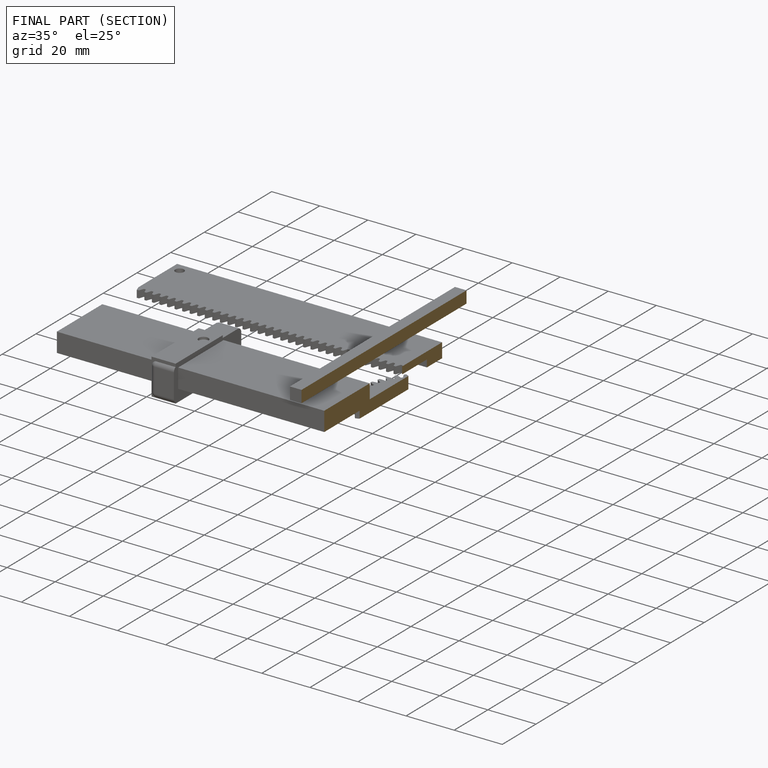
[diagram: finished part — half-section view (interior)]
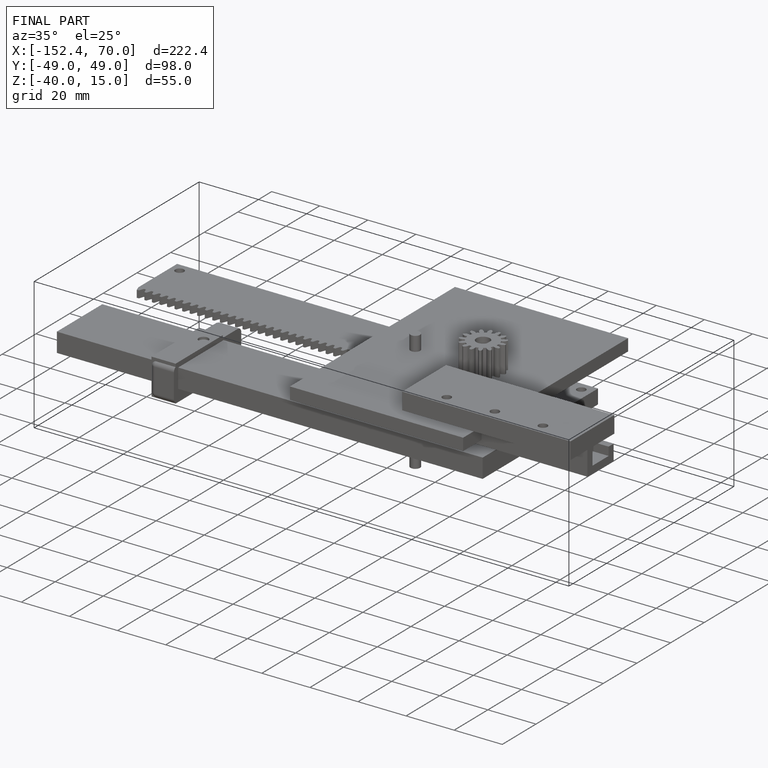
[diagram: finished part — iso view with bounding-box wireframe]
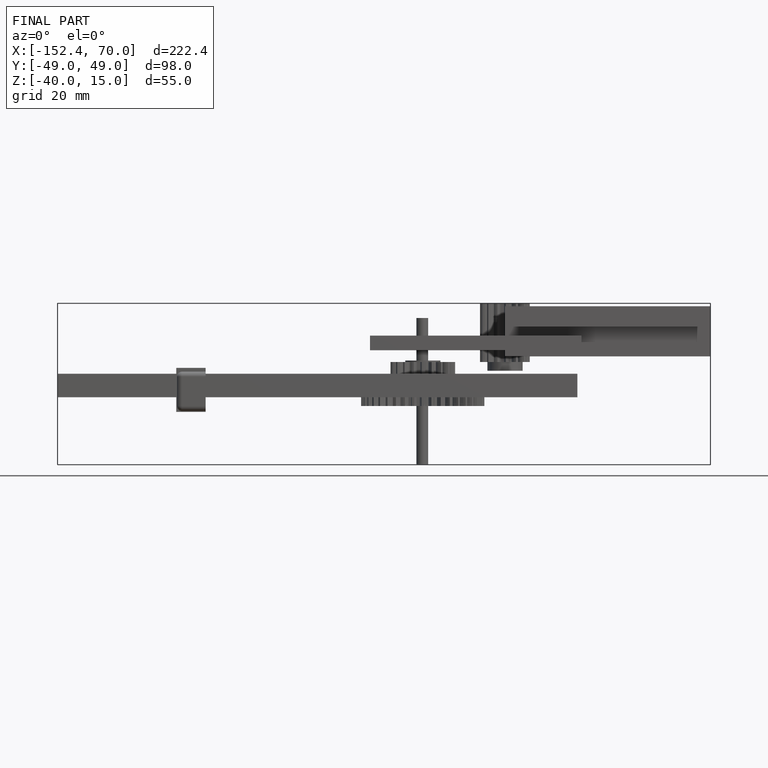
[diagram: finished part — front view with bounding-box wireframe]
